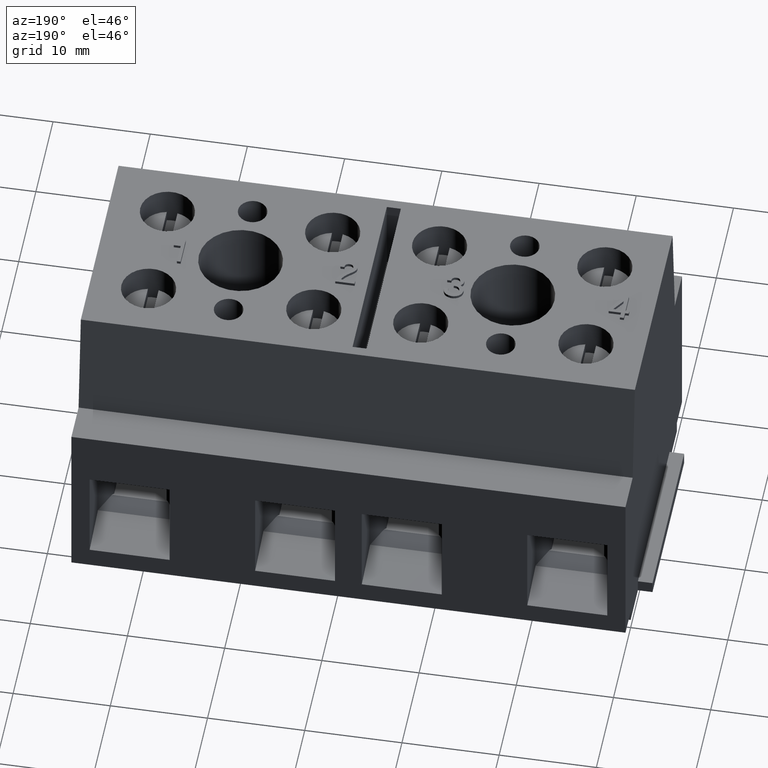
[diagram: clean part render]
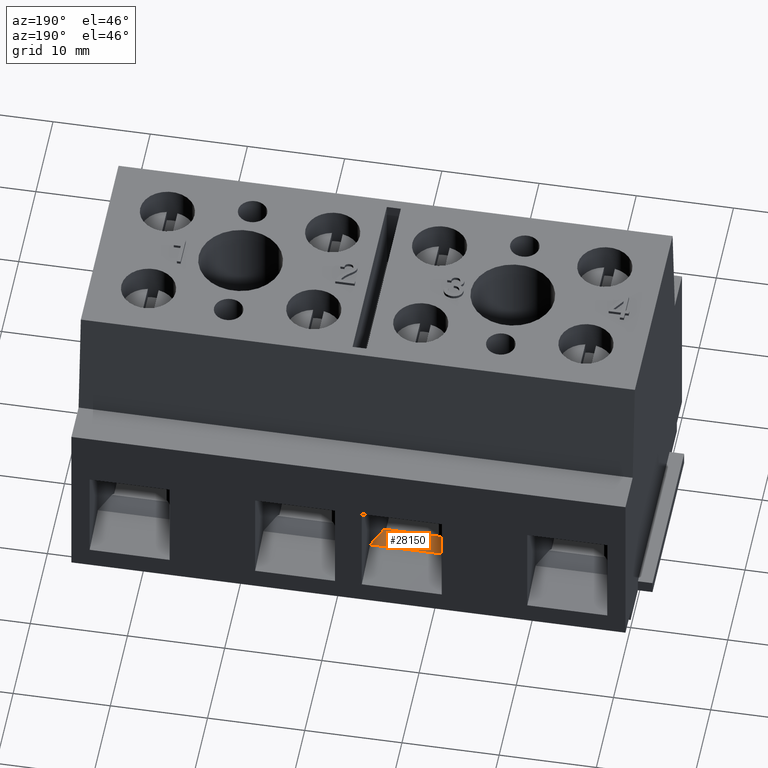
[diagram: same view with one face highlighted and labeled with its STEP entity id]
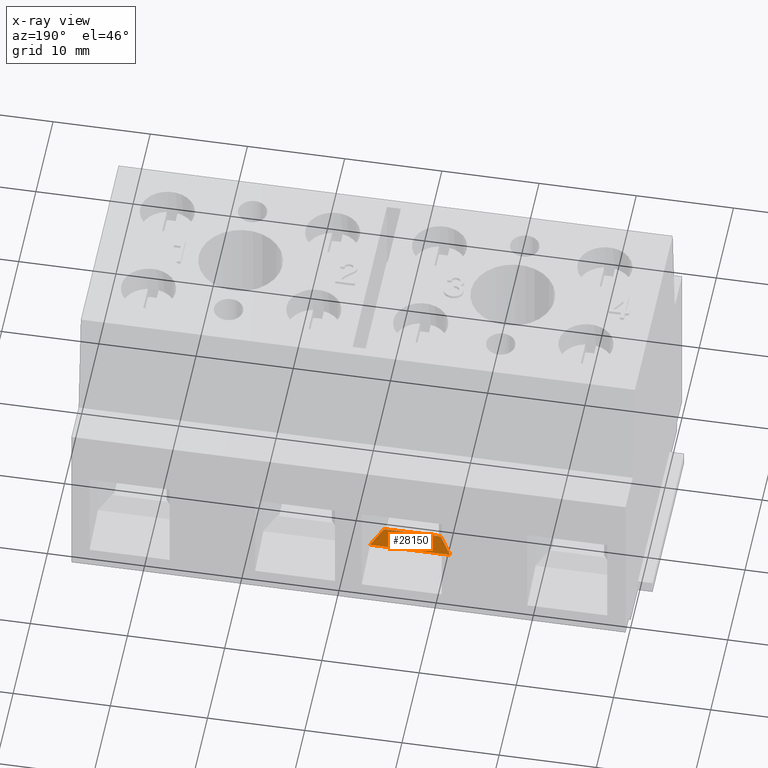
[diagram: x-ray of the same camera — body ghosted, the highlighted face saturated]
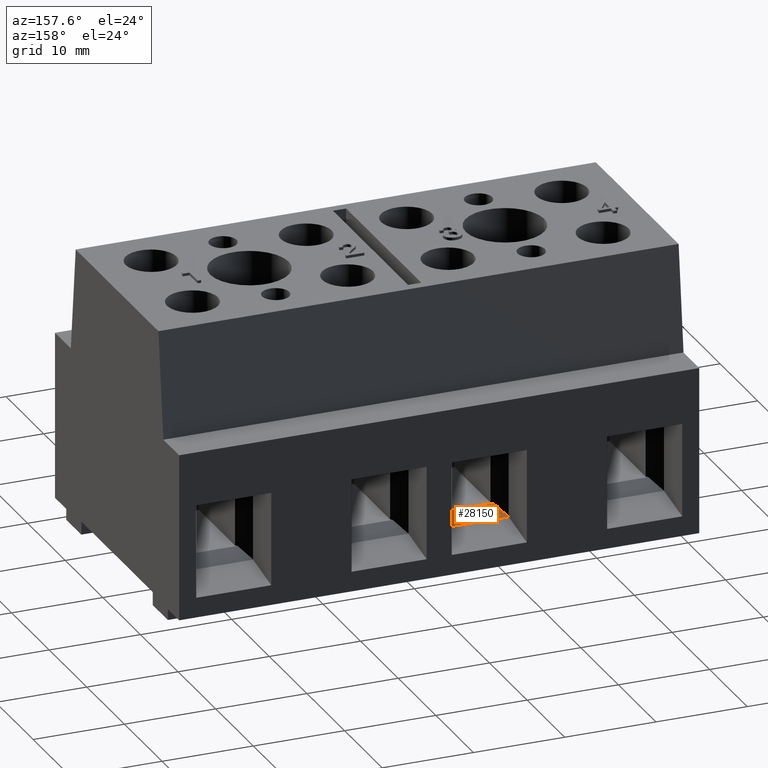
[diagram: same view with one face highlighted and labeled with its STEP entity id]
A machine part, auxiliary view. The second image highlights one B-rep face of the part: STEP entity #28150.
The next image is the same camera in x-ray: the body ghosted, the highlighted face saturated — about 1% of this face is hidden behind the body in this view.
A second angle (auxiliary view) of the same face is appended — the face is thin or edge-on in the first view.
In plain terms, the highlighted planar face has unit normal (-0, -0.7071, -0.7071).
Its self-contained STEP definition (entity closure, byte-faithful):
#24340=CARTESIAN_POINT('',(44.0213182031142,7.23412096955466,39.1));
#24350=VERTEX_POINT('',#24340);
#24380=CARTESIAN_POINT('',(0.,51.2554391726688,83.1213182031141));
#24390=DIRECTION('',(-0.577350269189626,0.577350269189626,
0.577350269189626));
#24400=VECTOR('',#24390,1.);
#24410=LINE('',#24380,#24400);
#24420=CARTESIAN_POINT('',(45.2213182031141,6.03412096955472,37.9));
#24430=VERTEX_POINT('',#24420);
#24440=EDGE_CURVE('',#24430,#24350,#24410,.T.);
#25600=CARTESIAN_POINT('',(43.9963182031141,7.25912096955474,29.));
#25610=DIRECTION('',(0.,0.,-1.));
#25620=VECTOR('',#25610,1.);
#25630=LINE('',#25600,#25620);
#25640=CARTESIAN_POINT('',(43.9963182031141,7.25912096955474,39.1));
#25650=VERTEX_POINT('',#25640);
#25660=CARTESIAN_POINT('',(43.9963182031141,7.25912096955472,30.875));
#25670=VERTEX_POINT('',#25660);
#25680=EDGE_CURVE('',#25650,#25670,#25630,.T.);
#27040=CARTESIAN_POINT('',(45.2213182031141,6.03412096955472,32.1));
#27050=VERTEX_POINT('',#27040);
#27080=CARTESIAN_POINT('',(0.,51.2554391726688,-13.1213182031141));
#27090=DIRECTION('',(-0.577350269189626,0.577350269189626,
-0.577350269189626));
#27100=VECTOR('',#27090,1.);
#27110=LINE('',#27080,#27100);
#27120=EDGE_CURVE('',#27050,#25670,#27110,.T.);
#27730=CARTESIAN_POINT('',(0.,51.2554391726688,39.1));
#27740=DIRECTION('',(-0.707106781186548,0.707106781186547,0.));
#27750=VECTOR('',#27740,1.);
#27760=LINE('',#27730,#27750);
#27770=EDGE_CURVE('',#24350,#25650,#27760,.T.);
#27980=CARTESIAN_POINT('',(45.2713182031141,5.98412096955471,31.));
#27990=DIRECTION('',(-0.707106781186547,-0.707106781186548,0.));
#28000=DIRECTION('',(0.707106781186548,-0.707106781186547,0.));
#28010=AXIS2_PLACEMENT_3D('',#27980,#27990,#28000);
#28020=PLANE('',#28010);
#28030=ORIENTED_EDGE('',*,*,#24440,.F.);
#28040=ORIENTED_EDGE('',*,*,#27770,.F.);
#28050=ORIENTED_EDGE('',*,*,#25680,.F.);
#28060=ORIENTED_EDGE('',*,*,#27120,.T.);
#28070=CARTESIAN_POINT('',(45.2213182031141,6.03412096955472,29.));
#28080=DIRECTION('',(1.11022302462516E-16,-1.11022302462515E-16,1.));
#28090=VECTOR('',#28080,1.);
#28100=LINE('',#28070,#28090);
#28110=EDGE_CURVE('',#27050,#24430,#28100,.T.);
#28120=ORIENTED_EDGE('',*,*,#28110,.F.);
#28130=EDGE_LOOP('',(#28120,#28060,#28050,#28040,#28030));
#28140=FACE_OUTER_BOUND('',#28130,.T.);
#28150=ADVANCED_FACE('',(#28140),#28020,.F.);